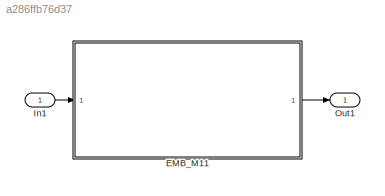
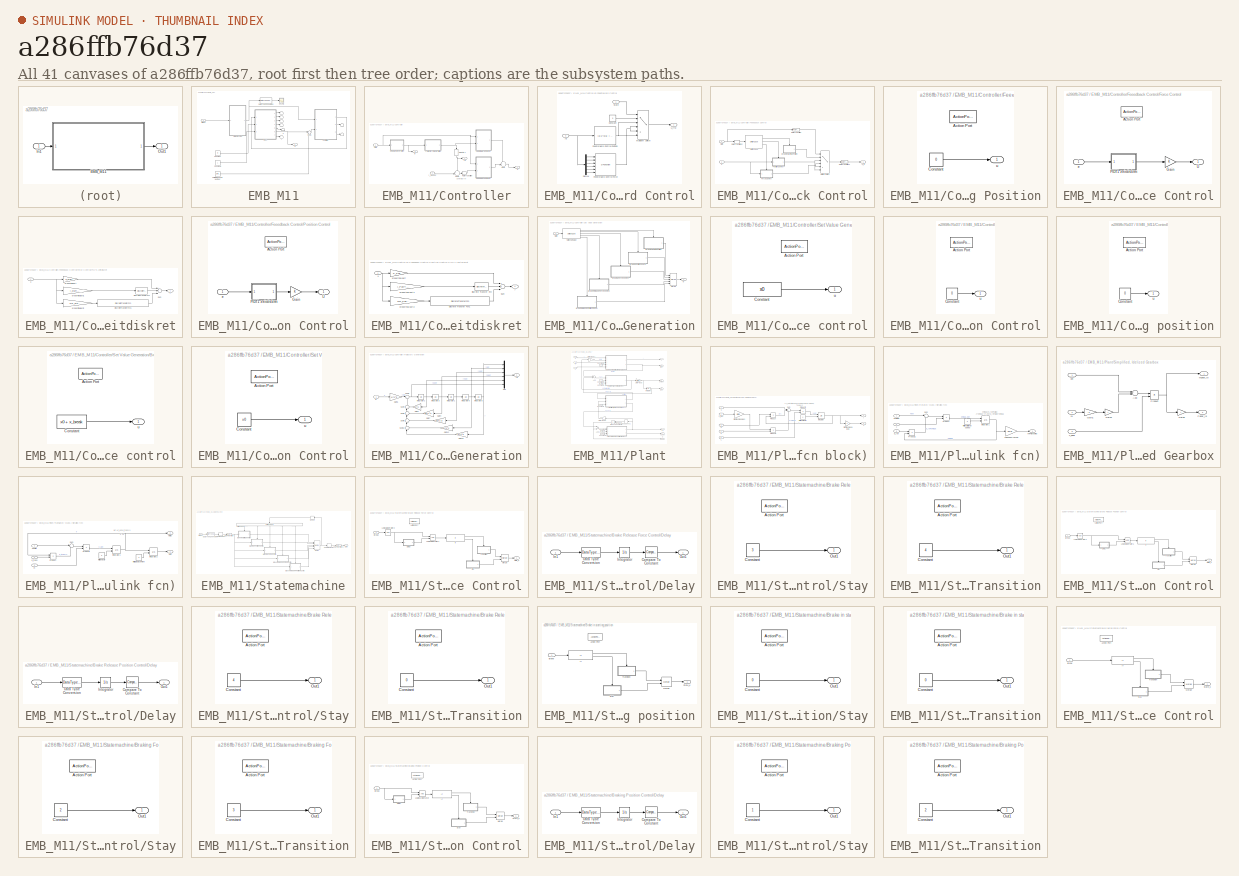
[diagram: thumbnail index - all 41 canvases of the model, root first then tree order]
MODEL slx_a286ffb76d37
KIND model
CONFIG AbsTol = auto
CONFIG EnableMultiTasking = off
CONFIG FixedStep = auto
CONFIG MaxStep = auto
CONFIG MinStep = auto
CONFIG RelTol = 1e-3
CONFIG SampleTimeConstraint = Unconstrained
CONFIG Solver = VariableStepAuto
CONFIG SolverName = VariableStepAuto
CONFIG StartTime = 0.0
CONFIG StopTime = 10.0
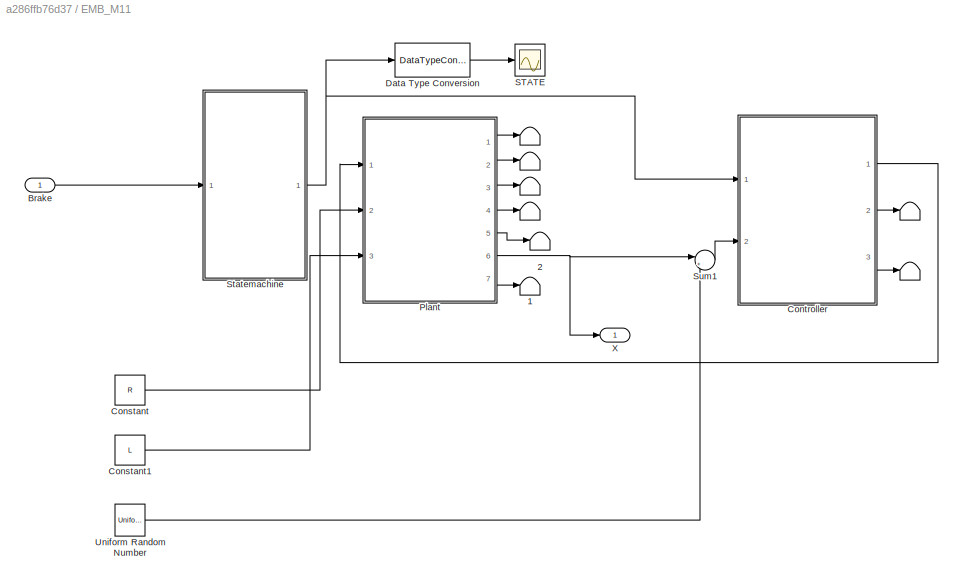
BLOCK [SubSystem] EMB_M11
  Ports = [1, 1]
  RequestExecContextInheritance = off
  Variant = off
BLOCK [Terminator] EMB_M11/  
BLOCK [Terminator] EMB_M11/   
BLOCK [Terminator] EMB_M11/    
BLOCK [Terminator] EMB_M11/      
BLOCK [Terminator] EMB_M11/        
BLOCK [Terminator] EMB_M11/          
BLOCK [Terminator] EMB_M11/   1
BLOCK [Terminator] EMB_M11/   2
BLOCK [Inport] EMB_M11/Brake
  IconDisplay = Port number
BLOCK [Constant] EMB_M11/Constant
  Value = R
BLOCK [Constant] EMB_M11/Constant1
  Value = L
BLOCK [SubSystem] EMB_M11/Controller
  Ports = [2, 3]
  RequestExecContextInheritance = off
  Variant = off
BLOCK [SubSystem] EMB_M11/Controller/Feedfoward Control
  Ports = [2, 1]
  RequestExecContextInheritance = off
  Variant = off
BLOCK [Constant] EMB_M11/Controller/Feedfoward Control/Constant
  Value = 0
BLOCK [Demux] EMB_M11/Controller/Feedfoward Control/Demux
  DisplayOption = bar
  Outputs = 6
  Ports = [1, 6]
BLOCK [S-Function] EMB_M11/Controller/Feedfoward Control/Feedforward Control Force
  EnableBusSupport = off
  FunctionName = InverseEMBforce
  Parameters = R,L,K,J,dvrot,m,dvtrans,cgear,i,cbreak,x0,xic
  Ports = [6, 1]
  SFcnIsStateOwnerBlock = off
  SFunctionDeploymentMode = off
BLOCK [Fcn] EMB_M11/Controller/Feedfoward Control/Feedforward Control Position
  Expr = (a(1)*u[6] + a(2)*u[5] + a(3)*u[4] + a(4)*u[3]  + a(5)*u[2] + a(6)*u[1] )/b
BLOCK [MultiPortSwitch] EMB_M11/Controller/Feedfoward Control/Multiport Switch
  DataPortOrder = Zero-based contiguous
  InputSameDT = off
  Inputs = 5
  Ports = [6, 1]
  SaturateOnIntegerOverflow = off
  zeroidx = on
BLOCK [Inport] EMB_M11/Controller/Feedfoward Control/State
  IconDisplay = Port number
BLOCK [Outport] EMB_M11/Controller/Feedfoward Control/U_ffw
  IconDisplay = Port number
BLOCK [Inport] EMB_M11/Controller/Feedfoward Control/yd
  IconDisplay = Port number
  Port = 2
BLOCK [SubSystem] EMB_M11/Controller/Feeedback Control
  Ports = [2, 1]
  RequestExecContextInheritance = off
  Variant = off
BLOCK [SubSystem] EMB_M11/Controller/Feeedback Control/Brakin in starting Position
  Ports = [0, 1, 0, 0, 0, 0, 0, 1]
  RequestExecContextInheritance = off
  TreatAsAtomicUnit = on
  Variant = off
BLOCK [ActionPort] EMB_M11/Controller/Feeedback Control/Brakin in starting Position/Action Port
BLOCK [Constant] EMB_M11/Controller/Feeedback Control/Brakin in starting Position/Constant
  Value = 0
BLOCK [Outport] EMB_M11/Controller/Feeedback Control/Brakin in starting Position/u
  IconDisplay = Port number
  SourceOfInitialOutputValue = Input signal
BLOCK [SubSystem] EMB_M11/Controller/Feeedback Control/Force Control
  Ports = [1, 1, 0, 0, 0, 0, 0, 1]
  RequestExecContextInheritance = off
  TreatAsAtomicUnit = on
  Variant = off
BLOCK [ActionPort] EMB_M11/Controller/Feeedback Control/Force Control/Action Port
  InitializeStates = reset
BLOCK [Gain] EMB_M11/Controller/Feeedback Control/Force Control/Gain
  OutDataTypeStr = Inherit: Inherit via internal rule
  ParamDataTypeStr = Inherit: Inherit via internal rule
  SaturateOnIntegerOverflow = off
BLOCK [SubSystem] EMB_M11/Controller/Feeedback Control/Force Control/PIDT1 zeitdiskret
  Ports = [1, 1]
  RequestExecContextInheritance = off
  Variant = off
BLOCK [DiscreteTransferFcn] EMB_M11/Controller/Feeedback Control/Force Control/PIDT1 zeitdiskret/Discrete Transfer Fcn
  Denominator = [1 -1]
  InputPortMap = u0
  Numerator = [1 1]
  Ports = [1, 1]
  SampleTime = T_abtast
BLOCK [DiscreteTransferFcn] EMB_M11/Controller/Feeedback Control/Force Control/PIDT1 zeitdiskret/Discrete Transfer Fcn1
  Denominator = [1+1/tan(T_abtast/2/1e-3) 1-1/tan(T_abtast/2/1e-3)]
  InputPortMap = u0
  Numerator = [1 -1]
  Ports = [1, 1]
  SampleTime = T_abtast
BLOCK [Sum] EMB_M11/Controller/Feeedback Control/Force Control/PIDT1 zeitdiskret/Sum
  InputSameDT = off
  Inputs = 3
  OutDataTypeStr = Inherit: Inherit via internal rule
  Ports = [3, 1]
  SaturateOnIntegerOverflow = off
BLOCK [Gain] EMB_M11/Controller/Feeedback Control/Force Control/PIDT1 zeitdiskret/proportinal part
  Gain = P_Kraft
  OutDataTypeStr = Inherit: Inherit via internal rule
  ParamDataTypeStr = Inherit: Inherit via internal rule
  SaturateOnIntegerOverflow = off
BLOCK [Gain] EMB_M11/Controller/Feeedback Control/Force Control/PIDT1 zeitdiskret/proportinal part1
  Gain = I_Kraft*T_abtast/2
  OutDataTypeStr = Inherit: Inherit via internal rule
  ParamDataTypeStr = Inherit: Inherit via internal rule
  SaturateOnIntegerOverflow = off
BLOCK [Gain] EMB_M11/Controller/Feeedback Control/Force Control/PIDT1 zeitdiskret/proportinal part2
  Gain = 2*D_Kraft/T_abtast
  OutDataTypeStr = Inherit: Inherit via internal rule
  ParamDataTypeStr = Inherit: Inherit via internal rule
  SaturateOnIntegerOverflow = off
BLOCK [Inport] EMB_M11/Controller/Feeedback Control/Force Control/PIDT1 zeitdiskret/u
  IconDisplay = Port number
BLOCK [Outport] EMB_M11/Controller/Feeedback Control/Force Control/PIDT1 zeitdiskret/y
  IconDisplay = Port number
BLOCK [Outport] EMB_M11/Controller/Feeedback Control/Force Control/U
  IconDisplay = Port number
  InitialOutput = 0
BLOCK [Inport] EMB_M11/Controller/Feeedback Control/Force Control/e
  IconDisplay = Port number
BLOCK [MultiPortSwitch] EMB_M11/Controller/Feeedback Control/Multiport Switch
  DataPortOrder = Zero-based contiguous
  InputSameDT = off
  Inputs = 5
  Ports = [6, 1]
  SaturateOnIntegerOverflow = off
  zeroidx = on
BLOCK [SubSystem] EMB_M11/Controller/Feeedback Control/Position Control
  Ports = [1, 1, 0, 0, 0, 0, 0, 1]
  RequestExecContextInheritance = off
  TreatAsAtomicUnit = on
  Variant = off
BLOCK [ActionPort] EMB_M11/Controller/Feeedback Control/Position Control/Action Port
  InitializeStates = reset
BLOCK [Gain] EMB_M11/Controller/Feeedback Control/Position Control/Gain
  OutDataTypeStr = Inherit: Inherit via internal rule
  ParamDataTypeStr = Inherit: Inherit via internal rule
  SaturateOnIntegerOverflow = off
BLOCK [SubSystem] EMB_M11/Controller/Feeedback Control/Position Control/PIDT1 zeitdiskret
  Ports = [1, 1]
  RequestExecContextInheritance = off
  Variant = off
BLOCK [DiscreteTransferFcn] EMB_M11/Controller/Feeedback Control/Position Control/PIDT1 zeitdiskret/Discrete Transfer Fcn
  Denominator = [1 -1]
  InputPortMap = u0
  Numerator = [1 1]
  Ports = [1, 1]
  SampleTime = T_abtast
BLOCK [DiscreteTransferFcn] EMB_M11/Controller/Feeedback Control/Position Control/PIDT1 zeitdiskret/Discrete Transfer Fcn1
  Denominator = [1+1/tan(T_abtast/2/1e-3) 1-1/tan(T_abtast/2/1e-3)]
  InputPortMap = u0
  Numerator = [1 -1]
  Ports = [1, 1]
  SampleTime = T_abtast
BLOCK [Sum] EMB_M11/Controller/Feeedback Control/Position Control/PIDT1 zeitdiskret/Sum
  InputSameDT = off
  Inputs = 3
  OutDataTypeStr = Inherit: Inherit via internal rule
  Ports = [3, 1]
  SaturateOnIntegerOverflow = off
BLOCK [Gain] EMB_M11/Controller/Feeedback Control/Position Control/PIDT1 zeitdiskret/proportinal part
  Gain = P_Pos
  OutDataTypeStr = Inherit: Inherit via internal rule
  ParamDataTypeStr = Inherit: Inherit via internal rule
  SaturateOnIntegerOverflow = off
BLOCK [Gain] EMB_M11/Controller/Feeedback Control/Position Control/PIDT1 zeitdiskret/proportinal part1
  Gain = I_Pos*T_abtast/2
  OutDataTypeStr = Inherit: Inherit via internal rule
  ParamDataTypeStr = Inherit: Inherit via internal rule
  SaturateOnIntegerOverflow = off
BLOCK [Gain] EMB_M11/Controller/Feeedback Control/Position Control/PIDT1 zeitdiskret/proportinal part2
  Gain = 2*D_Pos/T_abtast
  OutDataTypeStr = Inherit: Inherit via internal rule
  ParamDataTypeStr = Inherit: Inherit via internal rule
  SaturateOnIntegerOverflow = off
BLOCK [Inport] EMB_M11/Controller/Feeedback Control/Position Control/PIDT1 zeitdiskret/u
  IconDisplay = Port number
BLOCK [Outport] EMB_M11/Controller/Feeedback Control/Position Control/PIDT1 zeitdiskret/y
  IconDisplay = Port number
BLOCK [Outport] EMB_M11/Controller/Feeedback Control/Position Control/U
  IconDisplay = Port number
  InitialOutput = 0
BLOCK [Inport] EMB_M11/Controller/Feeedback Control/Position Control/e
  IconDisplay = Port number
BLOCK [RateTransition] EMB_M11/Controller/Feeedback Control/Rate Transition
BLOCK [RateTransition] EMB_M11/Controller/Feeedback Control/Rate Transition1
BLOCK [RateTransition] EMB_M11/Controller/Feeedback Control/Rate Transition2
BLOCK [Inport] EMB_M11/Controller/Feeedback Control/State
  IconDisplay = Port number
BLOCK [SwitchCase] EMB_M11/Controller/Feeedback Control/Switch Case
  CaseConditions = {0,[1,4],[2,3]}
  Ports = [1, 3]
  SampleTime = T_abtast
  ShowDefaultCase = off
BLOCK [Outport] EMB_M11/Controller/Feeedback Control/U_fb
  IconDisplay = Port number
BLOCK [Inport] EMB_M11/Controller/Feeedback Control/e
  IconDisplay = Port number
  Port = 2
BLOCK [RateTransition] EMB_M11/Controller/Rate Transition
BLOCK [Selector] EMB_M11/Controller/Selector1
  IndexOptions = Index vector (dialog)
  Indices = [1]
  InputPortWidth = 6
  OutputSizes = 1
  Ports = [1, 1]
BLOCK [SubSystem] EMB_M11/Controller/Set Value Generation
  Ports = [1, 1]
  RequestExecContextInheritance = off
  Variant = off
BLOCK [SubSystem] EMB_M11/Controller/Set Value Generation/Brake Release Force control
  Ports = [0, 1, 0, 0, 0, 0, 0, 1]
  RequestExecContextInheritance = off
  TreatAsAtomicUnit = on
  Variant = off
BLOCK [ActionPort] EMB_M11/Controller/Set Value Generation/Brake Release Force control/Action Port
BLOCK [Constant] EMB_M11/Controller/Set Value Generation/Brake Release Force control/Constant
  Value = x0
BLOCK [Outport] EMB_M11/Controller/Set Value Generation/Brake Release Force control/u
  IconDisplay = Port number
BLOCK [SubSystem] EMB_M11/Controller/Set Value Generation/Brake Release Position Control
  Ports = [0, 1, 0, 0, 0, 0, 0, 1]
  RequestExecContextInheritance = off
  TreatAsAtomicUnit = on
  Variant = off
BLOCK [ActionPort] EMB_M11/Controller/Set Value Generation/Brake Release Position Control/Action Port
BLOCK [Constant] EMB_M11/Controller/Set Value Generation/Brake Release Position Control/Constant
  Value = 0
BLOCK [Outport] EMB_M11/Controller/Set Value Generation/Brake Release Position Control/u
  IconDisplay = Port number
BLOCK [SubSystem] EMB_M11/Controller/Set Value Generation/Brake in starting position
  Ports = [0, 1, 0, 0, 0, 0, 0, 1]
  RequestExecContextInheritance = off
  TreatAsAtomicUnit = on
  Variant = off
BLOCK [ActionPort] EMB_M11/Controller/Set Value Generation/Brake in starting position/Action Port
BLOCK [Constant] EMB_M11/Controller/Set Value Generation/Brake in starting position/Constant
  Value = 0
BLOCK [Outport] EMB_M11/Controller/Set Value Generation/Brake in starting position/u
  IconDisplay = Port number
BLOCK [SubSystem] EMB_M11/Controller/Set Value Generation/Braking Force control
  Ports = [0, 1, 0, 0, 0, 0, 0, 1]
  RequestExecContextInheritance = off
  TreatAsAtomicUnit = on
  Variant = off
BLOCK [ActionPort] EMB_M11/Controller/Set Value Generation/Braking Force control/Action Port
BLOCK [Constant] EMB_M11/Controller/Set Value Generation/Braking Force control/Constant
  Value = x0 + x_break
BLOCK [Outport] EMB_M11/Controller/Set Value Generation/Braking Force control/u
  IconDisplay = Port number
BLOCK [SubSystem] EMB_M11/Controller/Set Value Generation/Braking Position Control
  Ports = [0, 1, 0, 0, 0, 0, 0, 1]
  RequestExecContextInheritance = off
  TreatAsAtomicUnit = on
  Variant = off
BLOCK [ActionPort] EMB_M11/Controller/Set Value Generation/Braking Position Control/Action Port
BLOCK [Constant] EMB_M11/Controller/Set Value Generation/Braking Position Control/Constant
  Value = x0
BLOCK [Outport] EMB_M11/Controller/Set Value Generation/Braking Position Control/u
  IconDisplay = Port number
BLOCK [Merge] EMB_M11/Controller/Set Value Generation/Merge
  InitialOutput = 0
  Inputs = 5
  Ports = [5, 1]
BLOCK [Inport] EMB_M11/Controller/Set Value Generation/State
  IconDisplay = Port number
BLOCK [SwitchCase] EMB_M11/Controller/Set Value Generation/Switch Set Value
  CaseConditions = {0,1,2,3,4}
  Ports = [1, 5]
  ShowDefaultCase = off
BLOCK [Outport] EMB_M11/Controller/Set Value Generation/w
  IconDisplay = Port number
BLOCK [Inport] EMB_M11/Controller/State
  IconDisplay = Port number
BLOCK [Sum] EMB_M11/Controller/Sum
  IconShape = round
  InputSameDT = off
  Inputs = ++|
  OutDataTypeStr = Inherit: Inherit via internal rule
  Ports = [2, 1]
  SaturateOnIntegerOverflow = off
BLOCK [Sum] EMB_M11/Controller/Sum1
  IconShape = round
  InputSameDT = off
  Inputs = +-|
  OutDataTypeStr = Inherit: Inherit via internal rule
  Ports = [2, 1]
  SaturateOnIntegerOverflow = off
BLOCK [SubSystem] EMB_M11/Controller/Trajectory Generation
  Ports = [1, 1]
  RequestExecContextInheritance = off
  Variant = off
BLOCK [Gain] EMB_M11/Controller/Trajectory Generation/Gain1
  Gain = 5/t1
  OutDataTypeStr = Inherit: Inherit via internal rule
  ParamDataTypeStr = Inherit: Inherit via internal rule
  SaturateOnIntegerOverflow = off
BLOCK [Gain] EMB_M11/Controller/Trajectory Generation/Gain12
  Gain = 5/t1^4
  OutDataTypeStr = Inherit: Inherit via internal rule
  ParamDataTypeStr = Inherit: Inherit via internal rule
  SaturateOnIntegerOverflow = off
BLOCK [Gain] EMB_M11/Controller/Trajectory Generation/Gain16
  Gain = 1/t1^5
  OutDataTypeStr = Inherit: Inherit via internal rule
  ParamDataTypeStr = Inherit: Inherit via internal rule
  SaturateOnIntegerOverflow = off
BLOCK [Gain] EMB_M11/Controller/Trajectory Generation/Gain4
  Gain = 10/t1^3
  OutDataTypeStr = Inherit: Inherit via internal rule
  ParamDataTypeStr = Inherit: Inherit via internal rule
  SaturateOnIntegerOverflow = off
BLOCK [Gain] EMB_M11/Controller/Trajectory Generation/Gain6
  Gain = 1/t1^5
  OutDataTypeStr = Inherit: Inherit via internal rule
  ParamDataTypeStr = Inherit: Inherit via internal rule
  SaturateOnIntegerOverflow = off
BLOCK [Gain] EMB_M11/Controller/Trajectory Generation/Gain7
  Gain = 10/t1^2
  OutDataTypeStr = Inherit: Inherit via internal rule
  ParamDataTypeStr = Inherit: Inherit via internal rule
  SaturateOnIntegerOverflow = off
BLOCK [Integrator] EMB_M11/Controller/Trajectory Generation/Integrator1
  Ports = [1, 1]
BLOCK [Integrator] EMB_M11/Controller/Trajectory Generation/Integrator2
  Ports = [1, 1]
BLOCK [Integrator] EMB_M11/Controller/Trajectory Generation/Integrator3
  Ports = [1, 1]
BLOCK [Integrator] EMB_M11/Controller/Trajectory Generation/Integrator5
  Ports = [1, 1]
BLOCK [Integrator] EMB_M11/Controller/Trajectory Generation/Integrator8
  Ports = [1, 1]
BLOCK [Mux] EMB_M11/Controller/Trajectory Generation/Mux
  DisplayOption = bar
  Inputs = 6
  Ports = [6, 1]
BLOCK [Sum] EMB_M11/Controller/Trajectory Generation/Sum1
  IconShape = round
  InputSameDT = off
  Inputs = |+-
  OutDataTypeStr = Inherit: Inherit via internal rule
  Ports = [2, 1]
  SaturateOnIntegerOverflow = off
BLOCK [Sum] EMB_M11/Controller/Trajectory Generation/Sum10
  IconShape = round
  InputSameDT = off
  Inputs = |++
  OutDataTypeStr = Inherit: Inherit via internal rule
  Ports = [2, 1]
  SaturateOnIntegerOverflow = off
BLOCK [Sum] EMB_M11/Controller/Trajectory Generation/Sum2
  IconShape = round
  InputSameDT = off
  Inputs = |++
  OutDataTypeStr = Inherit: Inherit via internal rule
  Ports = [2, 1]
  SaturateOnIntegerOverflow = off
BLOCK [Sum] EMB_M11/Controller/Trajectory Generation/Sum4
  IconShape = round
  InputSameDT = off
  Inputs = |++
  OutDataTypeStr = Inherit: Inherit via internal rule
  Ports = [2, 1]
  SaturateOnIntegerOverflow = off
BLOCK [Sum] EMB_M11/Controller/Trajectory Generation/Sum5
  IconShape = round
  InputSameDT = off
  Inputs = |++
  OutDataTypeStr = Inherit: Inherit via internal rule
  Ports = [2, 1]
  SaturateOnIntegerOverflow = off
BLOCK [Inport] EMB_M11/Controller/Trajectory Generation/w
  IconDisplay = Port number
BLOCK [Outport] EMB_M11/Controller/Trajectory Generation/yd
  IconDisplay = Port number
BLOCK [Outport] EMB_M11/Controller/U
  IconDisplay = Port number
BLOCK [Outport] EMB_M11/Controller/w
  IconDisplay = Port number
  Port = 2
BLOCK [Inport] EMB_M11/Controller/y_Sensor
  IconDisplay = Port number
  Port = 2
BLOCK [Outport] EMB_M11/Controller/yd
  IconDisplay = Port number
  Port = 3
BLOCK [DataTypeConversion] EMB_M11/Data Type Conversion
  RndMeth = Floor
  SaturateOnIntegerOverflow = off
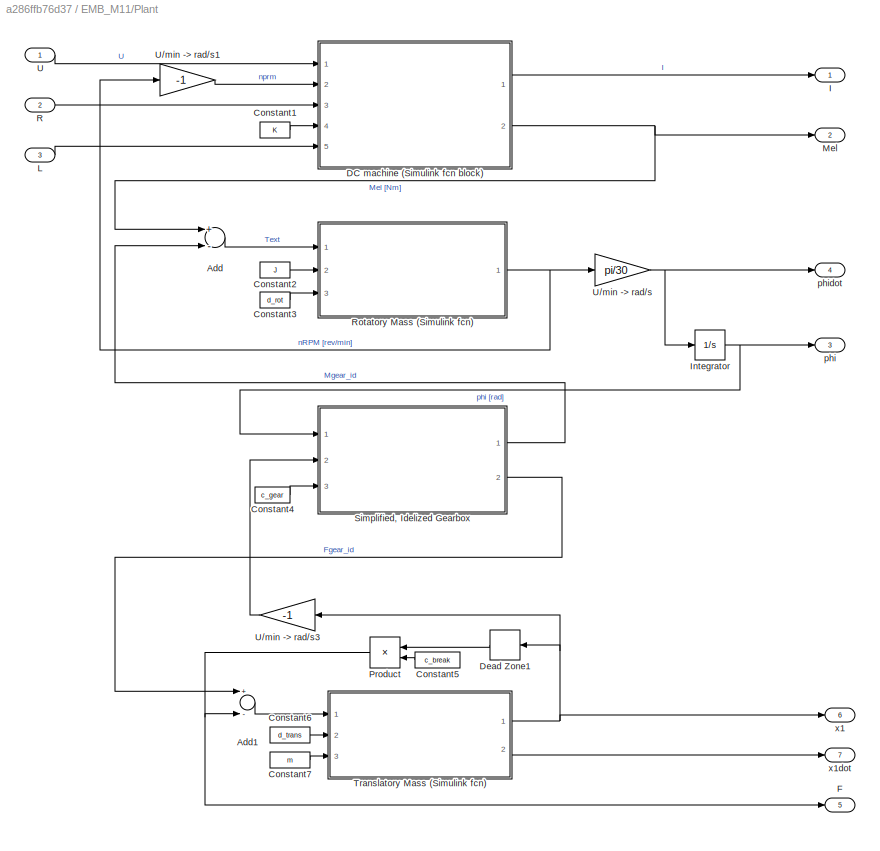
BLOCK [SubSystem] EMB_M11/Plant
  Ports = [3, 7]
  RequestExecContextInheritance = off
  Variant = off
BLOCK [Sum] EMB_M11/Plant/Add
  InputSameDT = off
  Inputs = +-
  OutDataTypeStr = Inherit: Inherit via internal rule
  Ports = [2, 1]
  SaturateOnIntegerOverflow = off
BLOCK [Sum] EMB_M11/Plant/Add1
  InputSameDT = off
  Inputs = +-
  OutDataTypeStr = Inherit: Inherit via internal rule
  Ports = [2, 1]
  SaturateOnIntegerOverflow = off
BLOCK [Constant] EMB_M11/Plant/Constant1
  Value = K
BLOCK [Constant] EMB_M11/Plant/Constant2
  Value = J
BLOCK [Constant] EMB_M11/Plant/Constant3
  Value = d_rot
BLOCK [Constant] EMB_M11/Plant/Constant4
  Value = c_gear
BLOCK [Constant] EMB_M11/Plant/Constant5
  Value = c_break
BLOCK [Constant] EMB_M11/Plant/Constant6
  Value = d_trans
BLOCK [Constant] EMB_M11/Plant/Constant7
  Value = m
BLOCK [SubSystem] EMB_M11/Plant/DC machine (Simulink fcn block)
  Ports = [5, 2]
  RequestExecContextInheritance = off
  Variant = off
BLOCK [Outport] EMB_M11/Plant/DC machine (Simulink fcn block)/I
  IconDisplay = Port number
BLOCK [Integrator] EMB_M11/Plant/DC machine (Simulink fcn block)/Integrator
  InitialConditionSource = external
  Ports = [2, 1]
BLOCK [Inport] EMB_M11/Plant/DC machine (Simulink fcn block)/K
  IconDisplay = Port number
  Port = 4
BLOCK [Inport] EMB_M11/Plant/DC machine (Simulink fcn block)/L
  IconDisplay = Port number
  Port = 5
BLOCK [Product] EMB_M11/Plant/DC machine (Simulink fcn block)/Product
  InputSameDT = off
  OutDataTypeStr = Inherit: Inherit via internal rule
  Ports = [2, 1]
  RndMeth = Floor
  SaturateOnIntegerOverflow = off
BLOCK [Product] EMB_M11/Plant/DC machine (Simulink fcn block)/Product1
  InputSameDT = off
  OutDataTypeStr = Inherit: Inherit via internal rule
  Ports = [2, 1]
  RndMeth = Floor
  SaturateOnIntegerOverflow = off
BLOCK [Product] EMB_M11/Plant/DC machine (Simulink fcn block)/Product2
  InputSameDT = off
  Inputs = */
  OutDataTypeStr = Inherit: Inherit via internal rule
  Ports = [2, 1]
  RndMeth = Floor
  SaturateOnIntegerOverflow = off
BLOCK [Inport] EMB_M11/Plant/DC machine (Simulink fcn block)/R
  IconDisplay = Port number
  Port = 3
BLOCK [Sum] EMB_M11/Plant/DC machine (Simulink fcn block)/Sum
  IconShape = round
  InputSameDT = off
  Inputs = |+--
  OutDataTypeStr = Inherit: Inherit via internal rule
  Ports = [3, 1]
  SaturateOnIntegerOverflow = off
BLOCK [Outport] EMB_M11/Plant/DC machine (Simulink fcn block)/T
  IconDisplay = Port number
  Port = 2
BLOCK [Inport] EMB_M11/Plant/DC machine (Simulink fcn block)/V
  IconDisplay = Port number
BLOCK [Constant] EMB_M11/Plant/DC machine (Simulink fcn block)/initial current [A]
  Value = 0
BLOCK [Gain] EMB_M11/Plant/DC machine (Simulink fcn block)/n [rpm] -> omega [1//s]
  Gain = pi/30
  OutDataTypeStr = Inherit: Inherit via internal rule
  ParamDataTypeStr = Inherit: Inherit via internal rule
  SaturateOnIntegerOverflow = off
BLOCK [Gain] EMB_M11/Plant/DC machine (Simulink fcn block)/n [rpm] -> omega [1//s]1
  Gain = K
  OutDataTypeStr = Inherit: Inherit via internal rule
  ParamDataTypeStr = Inherit: Inherit via internal rule
  SaturateOnIntegerOverflow = off
BLOCK [Inport] EMB_M11/Plant/DC machine (Simulink fcn block)/n_rpm
  IconDisplay = Port number
  Port = 2
BLOCK [DeadZone] EMB_M11/Plant/Dead Zone1
  LowerValue = -inf
  UpperValue = x0
BLOCK [Outport] EMB_M11/Plant/F
  IconDisplay = Port number
  Port = 5
BLOCK [Outport] EMB_M11/Plant/I
  IconDisplay = Port number
BLOCK [Integrator] EMB_M11/Plant/Integrator
  Ports = [1, 1]
BLOCK [Inport] EMB_M11/Plant/L
  IconDisplay = Port number
  Port = 3
BLOCK [Outport] EMB_M11/Plant/Mel
  IconDisplay = Port number
  Port = 2
BLOCK [Product] EMB_M11/Plant/Product
  InputSameDT = off
  OutDataTypeStr = Inherit: Inherit via internal rule
  Ports = [2, 1]
  RndMeth = Floor
  SaturateOnIntegerOverflow = off
BLOCK [Inport] EMB_M11/Plant/R
  IconDisplay = Port number
  Port = 2
BLOCK [SubSystem] EMB_M11/Plant/Rotatory Mass (Simulink fcn)
  Ports = [3, 1]
  RequestExecContextInheritance = off
  Variant = off
BLOCK [Integrator] EMB_M11/Plant/Rotatory Mass (Simulink fcn)/Integrator1
  InitialConditionSource = external
  Ports = [2, 1]
BLOCK [Inport] EMB_M11/Plant/Rotatory Mass (Simulink fcn)/J
  IconDisplay = Port number
  Port = 2
BLOCK [Product] EMB_M11/Plant/Rotatory Mass (Simulink fcn)/Product
  InputSameDT = off
  Inputs = */
  OutDataTypeStr = Inherit: Inherit via internal rule
  Ports = [2, 1]
  RndMeth = Floor
  SaturateOnIntegerOverflow = off
BLOCK [Product] EMB_M11/Plant/Rotatory Mass (Simulink fcn)/Product1
  InputSameDT = off
  OutDataTypeStr = Inherit: Inherit via internal rule
  Ports = [2, 1]
  RndMeth = Floor
  SaturateOnIntegerOverflow = off
BLOCK [Sum] EMB_M11/Plant/Rotatory Mass (Simulink fcn)/Sum
  IconShape = round
  InputSameDT = off
  Inputs = |+-
  OutDataTypeStr = Inherit: Inherit via internal rule
  Ports = [2, 1]
  SaturateOnIntegerOverflow = off
BLOCK [Inport] EMB_M11/Plant/Rotatory Mass (Simulink fcn)/Text [Nm]
  IconDisplay = Port number
BLOCK [Inport] EMB_M11/Plant/Rotatory Mass (Simulink fcn)/d_rot
  IconDisplay = Port number
  Port = 3
BLOCK [Constant] EMB_M11/Plant/Rotatory Mass (Simulink fcn)/initial rotational speed
  Value = 0
BLOCK [Outport] EMB_M11/Plant/Rotatory Mass (Simulink fcn)/nRPM[rev//min]
  IconDisplay = Port number
BLOCK [Gain] EMB_M11/Plant/Rotatory Mass (Simulink fcn)/omega [1//s] -> n [rpm]
  Gain = 30/pi
  OutDataTypeStr = Inherit: Inherit via internal rule
  ParamDataTypeStr = Inherit: Inherit via internal rule
  SaturateOnIntegerOverflow = off
BLOCK [SubSystem] EMB_M11/Plant/Simplified, Idelized Gearbox
  Ports = [3, 2]
  RequestExecContextInheritance = off
  Variant = off
BLOCK [Sum] EMB_M11/Plant/Simplified, Idelized Gearbox/Add
  InputSameDT = off
  Inputs = +-
  OutDataTypeStr = Inherit: Inherit via internal rule
  Ports = [2, 1]
  SaturateOnIntegerOverflow = off
BLOCK [Outport] EMB_M11/Plant/Simplified, Idelized Gearbox/Fgear_id
  IconDisplay = Port number
  Port = 2
BLOCK [Gain] EMB_M11/Plant/Simplified, Idelized Gearbox/Gain1
  Gain = -1
  OutDataTypeStr = Inherit: Inherit via internal rule
  ParamDataTypeStr = Inherit: Inherit via internal rule
  SaturateOnIntegerOverflow = off
BLOCK [Gain] EMB_M11/Plant/Simplified, Idelized Gearbox/Gain3
  Gain = i
  OutDataTypeStr = Inherit: Inherit via internal rule
  ParamDataTypeStr = Inherit: Inherit via internal rule
  SaturateOnIntegerOverflow = off
BLOCK [Gain] EMB_M11/Plant/Simplified, Idelized Gearbox/Gain5
  Gain = i
  OutDataTypeStr = Inherit: Inherit via internal rule
  ParamDataTypeStr = Inherit: Inherit via internal rule
  SaturateOnIntegerOverflow = off
BLOCK [Outport] EMB_M11/Plant/Simplified, Idelized Gearbox/Mgear_id
  IconDisplay = Port number
BLOCK [Product] EMB_M11/Plant/Simplified, Idelized Gearbox/Product
  InputSameDT = off
  OutDataTypeStr = Inherit: Inherit via internal rule
  Ports = [2, 1]
  RndMeth = Floor
  SaturateOnIntegerOverflow = off
BLOCK [Inport] EMB_M11/Plant/Simplified, Idelized Gearbox/c_gear
  IconDisplay = Port number
  Port = 3
BLOCK [Inport] EMB_M11/Plant/Simplified, Idelized Gearbox/phi
  IconDisplay = Port number
BLOCK [Inport] EMB_M11/Plant/Simplified, Idelized Gearbox/x1
  IconDisplay = Port number
  Port = 2
BLOCK [SubSystem] EMB_M11/Plant/Translatory Mass (Simulink fcn)
  Ports = [3, 2]
  RequestExecContextInheritance = off
  Variant = off
BLOCK [Inport] EMB_M11/Plant/Translatory Mass (Simulink fcn)/Fext [N]
  IconDisplay = Port number
BLOCK [Integrator] EMB_M11/Plant/Translatory Mass (Simulink fcn)/Integrator1
  InitialConditionSource = external
  Ports = [2, 1]
BLOCK [Integrator] EMB_M11/Plant/Translatory Mass (Simulink fcn)/Integrator2
  InitialConditionSource = external
  Ports = [2, 1]
BLOCK [Product] EMB_M11/Plant/Translatory Mass (Simulink fcn)/Product
  InputSameDT = off
  OutDataTypeStr = Inherit: Inherit via internal rule
  Ports = [2, 1]
  RndMeth = Floor
  SaturateOnIntegerOverflow = off
BLOCK [Product] EMB_M11/Plant/Translatory Mass (Simulink fcn)/Product1
  InputSameDT = off
  Inputs = */
  OutDataTypeStr = Inherit: Inherit via internal rule
  Ports = [2, 1]
  RndMeth = Floor
  SaturateOnIntegerOverflow = off
BLOCK [Sum] EMB_M11/Plant/Translatory Mass (Simulink fcn)/Sum
  IconShape = round
  InputSameDT = off
  Inputs = |+-
  OutDataTypeStr = Inherit: Inherit via internal rule
  Ports = [2, 1]
  SaturateOnIntegerOverflow = off
BLOCK [Inport] EMB_M11/Plant/Translatory Mass (Simulink fcn)/d_trans
  IconDisplay = Port number
  Port = 2
BLOCK [Constant] EMB_M11/Plant/Translatory Mass (Simulink fcn)/initial displacement
  Value = 0
BLOCK [Constant] EMB_M11/Plant/Translatory Mass (Simulink fcn)/initial velocity 
  Value = 0
BLOCK [Inport] EMB_M11/Plant/Translatory Mass (Simulink fcn)/m
  IconDisplay = Port number
  Port = 3
BLOCK [Outport] EMB_M11/Plant/Translatory Mass (Simulink fcn)/v[m//s]
  IconDisplay = Port number
  Port = 2
BLOCK [Outport] EMB_M11/Plant/Translatory Mass (Simulink fcn)/x [m]
  IconDisplay = Port number
BLOCK [Inport] EMB_M11/Plant/U
  IconDisplay = Port number
BLOCK [Gain] EMB_M11/Plant/U//min -> rad//s
  Gain = pi/30
  OutDataTypeStr = Inherit: Inherit via internal rule
  ParamDataTypeStr = Inherit: Inherit via internal rule
  SaturateOnIntegerOverflow = off
BLOCK [Gain] EMB_M11/Plant/U//min -> rad//s1
  Gain = -1
  OutDataTypeStr = Inherit: Inherit via internal rule
  ParamDataTypeStr = Inherit: Inherit via internal rule
  SaturateOnIntegerOverflow = off
BLOCK [Gain] EMB_M11/Plant/U//min -> rad//s3
  Gain = -1
  OutDataTypeStr = Inherit: Inherit via internal rule
  ParamDataTypeStr = Inherit: Inherit via internal rule
  SaturateOnIntegerOverflow = off
BLOCK [Outport] EMB_M11/Plant/phi
  IconDisplay = Port number
  Port = 3
BLOCK [Outport] EMB_M11/Plant/phidot
  IconDisplay = Port number
  Port = 4
BLOCK [Outport] EMB_M11/Plant/x1
  IconDisplay = Port number
  Port = 6
BLOCK [Outport] EMB_M11/Plant/x1dot
  IconDisplay = Port number
  Port = 7
BLOCK [Scope] EMB_M11/STATE
  NumInputPorts = 1
  Ports = [1]
  ScopeSpecificationString = C++SS(StrPVP('Location','[150, 165, 474, 404]'),StrPVP('Open','off'),MxPVP('AxesTitles',53,'struct(''axes1'',''%<SignalLabel>'')'),MxPVP('ScopeGraphics',56,'struct(''FigureColor'',''[0.5 0.5 0.5]'',''AxesColor'',''[0 0 0]'',''AxesTickColor'',''[1 1 1]'',''LineColors'',''[1 1 0;1 0 1;0 1 1;1 0 0;0 1 0;0 0 1]'',''LineStyles'',''-|-|-|-|-|-'',''LineWidths'',''[0.5 0.5 0.5 0.5 0.5 0.5]'',''MarkerStyle...<+272ch>
BLOCK [SubSystem] EMB_M11/Statemachine
  Ports = [1, 1]
  RequestExecContextInheritance = off
  Variant = off
BLOCK [Inport] EMB_M11/Statemachine/Brake
  IconDisplay = Port number
BLOCK [SubSystem] EMB_M11/Statemachine/Brake Release Force Control
  Ports = [1, 1, 0, 0, 0, 0, 0, 1]
  RequestExecContextInheritance = off
  TreatAsAtomicUnit = on
  Variant = off
BLOCK [ActionPort] EMB_M11/Statemachine/Brake Release Force Control/Action Port
  InitializeStates = reset
BLOCK [Inport] EMB_M11/Statemachine/Brake Release Force Control/Break
  IconDisplay = Port number
BLOCK [SubSystem] EMB_M11/Statemachine/Brake Release Force Control/Delay
  Ports = [1, 1]
  RequestExecContextInheritance = off
  Variant = off
BLOCK [Reference] EMB_M11/Statemachine/Brake Release Force Control/Delay/Compare To Constant  REF=simulink/Logic and Bit
Operations/Compare
To Constant
  Ports = [1, 1]
  SourceBlock = simulink/Logic and Bit\nOperations/Compare\nTo Constant
  SourceProductBaseCode = SL
  SourceProductName = Simulink
  SourceType = Compare To Constant
BLOCK [DataTypeConversion] EMB_M11/Statemachine/Brake Release Force Control/Delay/Data Type Conversion
  RndMeth = Floor
  SaturateOnIntegerOverflow = off
BLOCK [Inport] EMB_M11/Statemachine/Brake Release Force Control/Delay/In1
  IconDisplay = Port number
BLOCK [Integrator] EMB_M11/Statemachine/Brake Release Force Control/Delay/Integrator
  Ports = [1, 1]
BLOCK [Outport] EMB_M11/Statemachine/Brake Release Force Control/Delay/Out1
  IconDisplay = Port number
BLOCK [If] EMB_M11/Statemachine/Brake Release Force Control/If
  ElseIfExpressions = u1 == 0
  IfExpression = u1 == 1
  Ports = [1, 2]
  ShowElse = off
BLOCK [Logic] EMB_M11/Statemachine/Brake Release Force Control/Logical Operator1
  AllPortsSameDT = off
  OutDataTypeStr = boolean
  Ports = [2, 1]
BLOCK [Logic] EMB_M11/Statemachine/Brake Release Force Control/Logical Operator2
  AllPortsSameDT = off
  Operator = NOT
  OutDataTypeStr = boolean
  Ports = [1, 1]
BLOCK [Merge] EMB_M11/Statemachine/Brake Release Force Control/Merge
  Ports = [2, 1]
BLOCK [Outport] EMB_M11/Statemachine/Brake Release Force Control/State_k
  IconDisplay = Port number
BLOCK [SubSystem] EMB_M11/Statemachine/Brake Release Force Control/Stay
  Ports = [0, 1, 0, 0, 0, 0, 0, 1]
  RequestExecContextInheritance = off
  TreatAsAtomicUnit = on
  Variant = off
BLOCK [ActionPort] EMB_M11/Statemachine/Brake Release Force Control/Stay/Action Port
BLOCK [Constant] EMB_M11/Statemachine/Brake Release Force Control/Stay/Constant
  OutDataTypeStr = uint8
  Value = 3
BLOCK [Outport] EMB_M11/Statemachine/Brake Release Force Control/Stay/Out1
  IconDisplay = Port number
BLOCK [SubSystem] EMB_M11/Statemachine/Brake Release Force Control/Transition
  Ports = [0, 1, 0, 0, 0, 0, 0, 1]
  RequestExecContextInheritance = off
  TreatAsAtomicUnit = on
  Variant = off
BLOCK [ActionPort] EMB_M11/Statemachine/Brake Release Force Control/Transition/Action Port
BLOCK [Constant] EMB_M11/Statemachine/Brake Release Force Control/Transition/Constant
  OutDataTypeStr = uint8
  Value = 4
BLOCK [Outport] EMB_M11/Statemachine/Brake Release Force Control/Transition/Out1
  IconDisplay = Port number
BLOCK [SubSystem] EMB_M11/Statemachine/Brake Release Position Control
  Ports = [1, 1, 0, 0, 0, 0, 0, 1]
  RequestExecContextInheritance = off
  TreatAsAtomicUnit = on
  Variant = off
BLOCK [ActionPort] EMB_M11/Statemachine/Brake Release Position Control/Action Port
  InitializeStates = reset
BLOCK [Inport] EMB_M11/Statemachine/Brake Release Position Control/Break
  IconDisplay = Port number
BLOCK [SubSystem] EMB_M11/Statemachine/Brake Release Position Control/Delay
  Ports = [1, 1]
  RequestExecContextInheritance = off
  Variant = off
BLOCK [Reference] EMB_M11/Statemachine/Brake Release Position Control/Delay/Compare To Constant  REF=simulink/Logic and Bit
Operations/Compare
To Constant
  Ports = [1, 1]
  SourceBlock = simulink/Logic and Bit\nOperations/Compare\nTo Constant
  SourceProductBaseCode = SL
  SourceProductName = Simulink
  SourceType = Compare To Constant
BLOCK [DataTypeConversion] EMB_M11/Statemachine/Brake Release Position Control/Delay/Data Type Conversion
  RndMeth = Floor
  SaturateOnIntegerOverflow = off
BLOCK [Inport] EMB_M11/Statemachine/Brake Release Position Control/Delay/In1
  IconDisplay = Port number
BLOCK [Integrator] EMB_M11/Statemachine/Brake Release Position Control/Delay/Integrator
  Ports = [1, 1]
BLOCK [Outport] EMB_M11/Statemachine/Brake Release Position Control/Delay/Out1
  IconDisplay = Port number
BLOCK [If] EMB_M11/Statemachine/Brake Release Position Control/If
  ElseIfExpressions = u1 == 0
  IfExpression = u1 == 1
  Ports = [1, 2]
  ShowElse = off
BLOCK [Logic] EMB_M11/Statemachine/Brake Release Position Control/Logical Operator1
  AllPortsSameDT = off
  Operator = NOR
  OutDataTypeStr = boolean
  Ports = [2, 1]
BLOCK [Logic] EMB_M11/Statemachine/Brake Release Position Control/Logical Operator2
  AllPortsSameDT = off
  Operator = NOT
  OutDataTypeStr = boolean
  Ports = [1, 1]
BLOCK [Merge] EMB_M11/Statemachine/Brake Release Position Control/Merge
  Ports = [2, 1]
BLOCK [Outport] EMB_M11/Statemachine/Brake Release Position Control/State_k
  IconDisplay = Port number
BLOCK [SubSystem] EMB_M11/Statemachine/Brake Release Position Control/Stay
  Ports = [0, 1, 0, 0, 0, 0, 0, 1]
  RequestExecContextInheritance = off
  TreatAsAtomicUnit = on
  Variant = off
BLOCK [ActionPort] EMB_M11/Statemachine/Brake Release Position Control/Stay/Action Port
BLOCK [Constant] EMB_M11/Statemachine/Brake Release Position Control/Stay/Constant
  OutDataTypeStr = uint8
  Value = 4
BLOCK [Outport] EMB_M11/Statemachine/Brake Release Position Control/Stay/Out1
  IconDisplay = Port number
BLOCK [SubSystem] EMB_M11/Statemachine/Brake Release Position Control/Transition
  Ports = [0, 1, 0, 0, 0, 0, 0, 1]
  RequestExecContextInheritance = off
  TreatAsAtomicUnit = on
  Variant = off
BLOCK [ActionPort] EMB_M11/Statemachine/Brake Release Position Control/Transition/Action Port
BLOCK [Constant] EMB_M11/Statemachine/Brake Release Position Control/Transition/Constant
  OutDataTypeStr = uint8
  Value = 0
BLOCK [Outport] EMB_M11/Statemachine/Brake Release Position Control/Transition/Out1
  IconDisplay = Port number
BLOCK [SubSystem] EMB_M11/Statemachine/Brake in starting position
  Ports = [1, 1, 0, 0, 0, 0, 0, 1]
  RequestExecContextInheritance = off
  TreatAsAtomicUnit = on
  Variant = off
BLOCK [ActionPort] EMB_M11/Statemachine/Brake in starting position/Action Port
BLOCK [Inport] EMB_M11/Statemachine/Brake in starting position/Brake
  IconDisplay = Port number
BLOCK [If] EMB_M11/Statemachine/Brake in starting position/If
  ElseIfExpressions = u1 == 0
  IfExpression = u1 == 1
  Ports = [1, 2]
  ShowElse = off
BLOCK [Merge] EMB_M11/Statemachine/Brake in starting position/Merge
  Ports = [2, 1]
BLOCK [Outport] EMB_M11/Statemachine/Brake in starting position/State_k
  IconDisplay = Port number
BLOCK [SubSystem] EMB_M11/Statemachine/Brake in starting position/Stay
  Ports = [0, 1, 0, 0, 0, 0, 0, 1]
  RequestExecContextInheritance = off
  TreatAsAtomicUnit = on
  Variant = off
BLOCK [ActionPort] EMB_M11/Statemachine/Brake in starting position/Stay/Action Port
BLOCK [Constant] EMB_M11/Statemachine/Brake in starting position/Stay/Constant
  OutDataTypeStr = uint8
  Value = 0
BLOCK [Outport] EMB_M11/Statemachine/Brake in starting position/Stay/Out1
  IconDisplay = Port number
BLOCK [SubSystem] EMB_M11/Statemachine/Brake in starting position/Transition
  Ports = [0, 1, 0, 0, 0, 0, 0, 1]
  RequestExecContextInheritance = off
  TreatAsAtomicUnit = on
  Variant = off
BLOCK [ActionPort] EMB_M11/Statemachine/Brake in starting position/Transition/Action Port
BLOCK [Constant] EMB_M11/Statemachine/Brake in starting position/Transition/Constant
  OutDataTypeStr = uint8
  Value = 0
BLOCK [Outport] EMB_M11/Statemachine/Brake in starting position/Transition/Out1
  IconDisplay = Port number
BLOCK [SubSystem] EMB_M11/Statemachine/Braking Force Control
  Ports = [1, 1, 0, 0, 0, 0, 0, 1]
  RequestExecContextInheritance = off
  TreatAsAtomicUnit = on
  Variant = off
BLOCK [ActionPort] EMB_M11/Statemachine/Braking Force Control/Action Port
BLOCK [Inport] EMB_M11/Statemachine/Braking Force Control/Break
  IconDisplay = Port number
BLOCK [If] EMB_M11/Statemachine/Braking Force Control/If
  ElseIfExpressions = u1 == 1
  IfExpression = u1 == 0
  Ports = [1, 2]
  ShowElse = off
BLOCK [Merge] EMB_M11/Statemachine/Braking Force Control/Merge
  Ports = [2, 1]
BLOCK [Outport] EMB_M11/Statemachine/Braking Force Control/State_k
  IconDisplay = Port number
BLOCK [SubSystem] EMB_M11/Statemachine/Braking Force Control/Stay
  Ports = [0, 1, 0, 0, 0, 0, 0, 1]
  RequestExecContextInheritance = off
  TreatAsAtomicUnit = on
  Variant = off
BLOCK [ActionPort] EMB_M11/Statemachine/Braking Force Control/Stay/Action Port
BLOCK [Constant] EMB_M11/Statemachine/Braking Force Control/Stay/Constant
  OutDataTypeStr = uint8
  Value = 2
BLOCK [Outport] EMB_M11/Statemachine/Braking Force Control/Stay/Out1
  IconDisplay = Port number
BLOCK [SubSystem] EMB_M11/Statemachine/Braking Force Control/Transition
  Ports = [0, 1, 0, 0, 0, 0, 0, 1]
  RequestExecContextInheritance = off
  TreatAsAtomicUnit = on
  Variant = off
BLOCK [ActionPort] EMB_M11/Statemachine/Braking Force Control/Transition/Action Port
BLOCK [Constant] EMB_M11/Statemachine/Braking Force Control/Transition/Constant
  OutDataTypeStr = uint8
  Value = 3
BLOCK [Outport] EMB_M11/Statemachine/Braking Force Control/Transition/Out1
  IconDisplay = Port number
BLOCK [SubSystem] EMB_M11/Statemachine/Braking Position Control
  Ports = [1, 1, 0, 0, 0, 0, 0, 1]
  RequestExecContextInheritance = off
  TreatAsAtomicUnit = on
  Variant = off
BLOCK [ActionPort] EMB_M11/Statemachine/Braking Position Control/Action Port
  InitializeStates = reset
BLOCK [Inport] EMB_M11/Statemachine/Braking Position Control/Break
  IconDisplay = Port number
BLOCK [SubSystem] EMB_M11/Statemachine/Braking Position Control/Delay
  Ports = [1, 1]
  RequestExecContextInheritance = off
  Variant = off
BLOCK [Reference] EMB_M11/Statemachine/Braking Position Control/Delay/Compare To Constant  REF=simulink/Logic and Bit
Operations/Compare
To Constant
  Ports = [1, 1]
  SourceBlock = simulink/Logic and Bit\nOperations/Compare\nTo Constant
  SourceProductBaseCode = SL
  SourceProductName = Simulink
  SourceType = Compare To Constant
BLOCK [DataTypeConversion] EMB_M11/Statemachine/Braking Position Control/Delay/Data Type Conversion
  RndMeth = Floor
  SaturateOnIntegerOverflow = off
BLOCK [Inport] EMB_M11/Statemachine/Braking Position Control/Delay/In1
  IconDisplay = Port number
BLOCK [Integrator] EMB_M11/Statemachine/Braking Position Control/Delay/Integrator
  Ports = [1, 1]
BLOCK [Outport] EMB_M11/Statemachine/Braking Position Control/Delay/Out1
  IconDisplay = Port number
BLOCK [If] EMB_M11/Statemachine/Braking Position Control/If
  ElseIfExpressions = u1 == 0
  IfExpression = u1 == 1
  Ports = [1, 2]
  ShowElse = off
BLOCK [Logic] EMB_M11/Statemachine/Braking Position Control/Logical Operator
  AllPortsSameDT = off
  OutDataTypeStr = boolean
  Ports = [2, 1]
BLOCK [Merge] EMB_M11/Statemachine/Braking Position Control/Merge
  Ports = [2, 1]
BLOCK [Outport] EMB_M11/Statemachine/Braking Position Control/State_k
  IconDisplay = Port number
BLOCK [SubSystem] EMB_M11/Statemachine/Braking Position Control/Stay
  Ports = [0, 1, 0, 0, 0, 0, 0, 1]
  RequestExecContextInheritance = off
  TreatAsAtomicUnit = on
  Variant = off
BLOCK [ActionPort] EMB_M11/Statemachine/Braking Position Control/Stay/Action Port
BLOCK [Constant] EMB_M11/Statemachine/Braking Position Control/Stay/Constant
  OutDataTypeStr = uint8
BLOCK [Outport] EMB_M11/Statemachine/Braking Position Control/Stay/Out1
  IconDisplay = Port number
BLOCK [SubSystem] EMB_M11/Statemachine/Braking Position Control/Transition
  Ports = [0, 1, 0, 0, 0, 0, 0, 1]
  RequestExecContextInheritance = off
  TreatAsAtomicUnit = on
  Variant = off
BLOCK [ActionPort] EMB_M11/Statemachine/Braking Position Control/Transition/Action Port
BLOCK [Constant] EMB_M11/Statemachine/Braking Position Control/Transition/Constant
  OutDataTypeStr = uint8
  Value = 2
BLOCK [Outport] EMB_M11/Statemachine/Braking Position Control/Transition/Out1
  IconDisplay = Port number
BLOCK [DataTypeConversion] EMB_M11/Statemachine/Data Type Conversion
  OutDataTypeStr = uint8
  RndMeth = Floor
  SaturateOnIntegerOverflow = off
BLOCK [Memory] EMB_M11/Statemachine/Memory
  InheritSampleTime = on
BLOCK [Merge] EMB_M11/Statemachine/Merge
  InitialOutput = 0
  Inputs = 5
  Ports = [5, 1]
BLOCK [RateTransition] EMB_M11/Statemachine/Rate Transition
BLOCK [RateTransition] EMB_M11/Statemachine/Rate Transition1
BLOCK [Outport] EMB_M11/Statemachine/State
  IconDisplay = Port number
BLOCK [SwitchCase] EMB_M11/Statemachine/Switch Case
  CaseConditions = {0,1,2,3,4}
  Ports = [1, 5]
  ShowDefaultCase = off
BLOCK [ZeroOrderHold] EMB_M11/Statemachine/Zero-Order Hold1
  SampleTime = T_abtast
BLOCK [ZeroOrderHold] EMB_M11/Statemachine/Zero-Order Hold2
  SampleTime = T_abtast
BLOCK [Sum] EMB_M11/Sum1
  IconShape = round
  InputSameDT = off
  Inputs = |++
  OutDataTypeStr = Inherit: Inherit via internal rule
  Ports = [2, 1]
  SaturateOnIntegerOverflow = off
BLOCK [UniformRandomNumber] EMB_M11/Uniform Random Number
  Maximum = 0.05
  Minimum = -0.05
  SampleTime = 0.000005
BLOCK [Outport] EMB_M11/X
  IconDisplay = Port number
BLOCK [Inport] In1
  IconDisplay = Port number
BLOCK [Outport] Out1
  IconDisplay = Port number
ANNOTATION EMB_M11/Controller: Control Error
ANNOTATION EMB_M11/Plant/DC machine (Simulink fcn block): L*I_dot = V - tanh(100*I)*Ubrush - R*I - K*omega; Tout = K*I;
ANNOTATION EMB_M11/Plant/Rotatory Mass (Simulink fcn): omega = n_rpm * pi/30 J * omega´ = T_ext - d_rot*pi/30 * omega
ANNOTATION EMB_M11/Plant/Translatory Mass (Simulink fcn): M v´ = F_ext – d_trans * v x´=v
LINE EMB_M11/Brake:1 -> EMB_M11/Statemachine:1
LINE EMB_M11/Constant1:1 -> EMB_M11/Plant:3
LINE EMB_M11/Constant:1 -> EMB_M11/Plant:2
LINE EMB_M11/Controller/Feedfoward Control/Constant:1 -> EMB_M11/Controller/Feedfoward Control/Multiport Switch:2
LINE EMB_M11/Controller/Feedfoward Control/Demux:1 -> EMB_M11/Controller/Feedfoward Control/Feedforward Control Force:1
LINE EMB_M11/Controller/Feedfoward Control/Demux:2 -> EMB_M11/Controller/Feedfoward Control/Feedforward Control Force:2
LINE EMB_M11/Controller/Feedfoward Control/Demux:3 -> EMB_M11/Controller/Feedfoward Control/Feedforward Control Force:3
LINE EMB_M11/Controller/Feedfoward Control/Demux:4 -> EMB_M11/Controller/Feedfoward Control/Feedforward Control Force:4
LINE EMB_M11/Controller/Feedfoward Control/Demux:5 -> EMB_M11/Controller/Feedfoward Control/Feedforward Control Force:5
LINE EMB_M11/Controller/Feedfoward Control/Demux:6 -> EMB_M11/Controller/Feedfoward Control/Feedforward Control Force:6
NET EMB_M11/Controller/Feedfoward Control/Feedforward Control Force:1 -> EMB_M11/Controller/Feedfoward Control/Multiport Switch:4, EMB_M11/Controller/Feedfoward Control/Multiport Switch:5
NET EMB_M11/Controller/Feedfoward Control/Feedforward Control Position:1 -> EMB_M11/Controller/Feedfoward Control/Multiport Switch:3, EMB_M11/Controller/Feedfoward Control/Multiport Switch:6
LINE EMB_M11/Controller/Feedfoward Control/Multiport Switch:1 -> EMB_M11/Controller/Feedfoward Control/U_ffw:1
LINE EMB_M11/Controller/Feedfoward Control/State:1 -> EMB_M11/Controller/Feedfoward Control/Multiport Switch:1
NET EMB_M11/Controller/Feedfoward Control/yd:1 -> EMB_M11/Controller/Feedfoward Control/Demux:1, EMB_M11/Controller/Feedfoward Control/Feedforward Control Position:1
LINE EMB_M11/Controller/Feedfoward Control:1 -> EMB_M11/Controller/Sum:1
LINE EMB_M11/Controller/Feeedback Control/Brakin in starting Position/Constant:1 -> EMB_M11/Controller/Feeedback Control/Brakin in starting Position/u:1
LINE EMB_M11/Controller/Feeedback Control/Brakin in starting Position:1 -> EMB_M11/Controller/Feeedback Control/Multiport Switch:2
LINE EMB_M11/Controller/Feeedback Control/Force Control/Gain:1 -> EMB_M11/Controller/Feeedback Control/Force Control/U:1
LINE EMB_M11/Controller/Feeedback Control/Force Control/PIDT1 zeitdiskret/Discrete Transfer Fcn1:1 -> EMB_M11/Controller/Feeedback Control/Force Control/PIDT1 zeitdiskret/Sum:3
LINE EMB_M11/Controller/Feeedback Control/Force Control/PIDT1 zeitdiskret/Discrete Transfer Fcn:1 -> EMB_M11/Controller/Feeedback Control/Force Control/PIDT1 zeitdiskret/Sum:2
LINE EMB_M11/Controller/Feeedback Control/Force Control/PIDT1 zeitdiskret/Sum:1 -> EMB_M11/Controller/Feeedback Control/Force Control/PIDT1 zeitdiskret/y:1
LINE EMB_M11/Controller/Feeedback Control/Force Control/PIDT1 zeitdiskret/proportinal part1:1 -> EMB_M11/Controller/Feeedback Control/Force Control/PIDT1 zeitdiskret/Discrete Transfer Fcn:1
LINE EMB_M11/Controller/Feeedback Control/Force Control/PIDT1 zeitdiskret/proportinal part2:1 -> EMB_M11/Controller/Feeedback Control/Force Control/PIDT1 zeitdiskret/Discrete Transfer Fcn1:1
LINE EMB_M11/Controller/Feeedback Control/Force Control/PIDT1 zeitdiskret/proportinal part:1 -> EMB_M11/Controller/Feeedback Control/Force Control/PIDT1 zeitdiskret/Sum:1
NET EMB_M11/Controller/Feeedback Control/Force Control/PIDT1 zeitdiskret/u:1 -> EMB_M11/Controller/Feeedback Control/Force Control/PIDT1 zeitdiskret/proportinal part1:1, EMB_M11/Controller/Feeedback Control/Force Control/PIDT1 zeitdiskret/proportinal part2:1, EMB_M11/Controller/Feeedback Control/Force Control/PIDT1 zeitdiskret/proportinal part:1
LINE EMB_M11/Controller/Feeedback Control/Force Control/PIDT1 zeitdiskret:1 -> EMB_M11/Controller/Feeedback Control/Force Control/Gain:1
LINE EMB_M11/Controller/Feeedback Control/Force Control/e:1 -> EMB_M11/Controller/Feeedback Control/Force Control/PIDT1 zeitdiskret:1
NET EMB_M11/Controller/Feeedback Control/Force Control:1 -> EMB_M11/Controller/Feeedback Control/Multiport Switch:4, EMB_M11/Controller/Feeedback Control/Multiport Switch:5
LINE EMB_M11/Controller/Feeedback Control/Multiport Switch:1 -> EMB_M11/Controller/Feeedback Control/Rate Transition1:1
LINE EMB_M11/Controller/Feeedback Control/Position Control/Gain:1 -> EMB_M11/Controller/Feeedback Control/Position Control/U:1
LINE EMB_M11/Controller/Feeedback Control/Position Control/PIDT1 zeitdiskret/Discrete Transfer Fcn1:1 -> EMB_M11/Controller/Feeedback Control/Position Control/PIDT1 zeitdiskret/Sum:3
LINE EMB_M11/Controller/Feeedback Control/Position Control/PIDT1 zeitdiskret/Discrete Transfer Fcn:1 -> EMB_M11/Controller/Feeedback Control/Position Control/PIDT1 zeitdiskret/Sum:2
LINE EMB_M11/Controller/Feeedback Control/Position Control/PIDT1 zeitdiskret/Sum:1 -> EMB_M11/Controller/Feeedback Control/Position Control/PIDT1 zeitdiskret/y:1
LINE EMB_M11/Controller/Feeedback Control/Position Control/PIDT1 zeitdiskret/proportinal part1:1 -> EMB_M11/Controller/Feeedback Control/Position Control/PIDT1 zeitdiskret/Discrete Transfer Fcn:1
LINE EMB_M11/Controller/Feeedback Control/Position Control/PIDT1 zeitdiskret/proportinal part2:1 -> EMB_M11/Controller/Feeedback Control/Position Control/PIDT1 zeitdiskret/Discrete Transfer Fcn1:1
LINE EMB_M11/Controller/Feeedback Control/Position Control/PIDT1 zeitdiskret/proportinal part:1 -> EMB_M11/Controller/Feeedback Control/Position Control/PIDT1 zeitdiskret/Sum:1
NET EMB_M11/Controller/Feeedback Control/Position Control/PIDT1 zeitdiskret/u:1 -> EMB_M11/Controller/Feeedback Control/Position Control/PIDT1 zeitdiskret/proportinal part1:1, EMB_M11/Controller/Feeedback Control/Position Control/PIDT1 zeitdiskret/proportinal part2:1, EMB_M11/Controller/Feeedback Control/Position Control/PIDT1 zeitdiskret/proportinal part:1
LINE EMB_M11/Controller/Feeedback Control/Position Control/PIDT1 zeitdiskret:1 -> EMB_M11/Controller/Feeedback Control/Position Control/Gain:1
LINE EMB_M11/Controller/Feeedback Control/Position Control/e:1 -> EMB_M11/Controller/Feeedback Control/Position Control/PIDT1 zeitdiskret:1
NET EMB_M11/Controller/Feeedback Control/Position Control:1 -> EMB_M11/Controller/Feeedback Control/Multiport Switch:3, EMB_M11/Controller/Feeedback Control/Multiport Switch:6
LINE EMB_M11/Controller/Feeedback Control/Rate Transition1:1 -> EMB_M11/Controller/Feeedback Control/U_fb:1
LINE EMB_M11/Controller/Feeedback Control/Rate Transition2:1 -> EMB_M11/Controller/Feeedback Control/Switch Case:1
LINE EMB_M11/Controller/Feeedback Control/Rate Transition:1 -> EMB_M11/Controller/Feeedback Control/Multiport Switch:1
NET EMB_M11/Controller/Feeedback Control/State:1 -> EMB_M11/Controller/Feeedback Control/Rate Transition2:1, EMB_M11/Controller/Feeedback Control/Rate Transition:1
LINE EMB_M11/Controller/Feeedback Control/Switch Case:1 -> EMB_M11/Controller/Feeedback Control/Brakin in starting Position:ifaction
LINE EMB_M11/Controller/Feeedback Control/Switch Case:2 -> EMB_M11/Controller/Feeedback Control/Position Control:ifaction
LINE EMB_M11/Controller/Feeedback Control/Switch Case:3 -> EMB_M11/Controller/Feeedback Control/Force Control:ifaction
NET EMB_M11/Controller/Feeedback Control/e:1 -> EMB_M11/Controller/Feeedback Control/Force Control:1, EMB_M11/Controller/Feeedback Control/Position Control:1
LINE EMB_M11/Controller/Feeedback Control:1 -> EMB_M11/Controller/Sum:2
LINE EMB_M11/Controller/Rate Transition:1 -> EMB_M11/Controller/Feeedback Control:2
NET EMB_M11/Controller/Selector1:1 -> EMB_M11/Controller/Sum1:1, EMB_M11/Controller/yd:1
LINE EMB_M11/Controller/Set Value Generation/Brake Release Force control/Constant:1 -> EMB_M11/Controller/Set Value Generation/Brake Release Force control/u:1
LINE EMB_M11/Controller/Set Value Generation/Brake Release Force control:1 -> EMB_M11/Controller/Set Value Generation/Merge:4
LINE EMB_M11/Controller/Set Value Generation/Brake Release Position Control/Constant:1 -> EMB_M11/Controller/Set Value Generation/Brake Release Position Control/u:1
LINE EMB_M11/Controller/Set Value Generation/Brake Release Position Control:1 -> EMB_M11/Controller/Set Value Generation/Merge:5
LINE EMB_M11/Controller/Set Value Generation/Brake in starting position/Constant:1 -> EMB_M11/Controller/Set Value Generation/Brake in starting position/u:1
LINE EMB_M11/Controller/Set Value Generation/Brake in starting position:1 -> EMB_M11/Controller/Set Value Generation/Merge:1
LINE EMB_M11/Controller/Set Value Generation/Braking Force control/Constant:1 -> EMB_M11/Controller/Set Value Generation/Braking Force control/u:1
LINE EMB_M11/Controller/Set Value Generation/Braking Force control:1 -> EMB_M11/Controller/Set Value Generation/Merge:3
LINE EMB_M11/Controller/Set Value Generation/Braking Position Control/Constant:1 -> EMB_M11/Controller/Set Value Generation/Braking Position Control/u:1
LINE EMB_M11/Controller/Set Value Generation/Braking Position Control:1 -> EMB_M11/Controller/Set Value Generation/Merge:2
LINE EMB_M11/Controller/Set Value Generation/Merge:1 -> EMB_M11/Controller/Set Value Generation/w:1
LINE EMB_M11/Controller/Set Value Generation/State:1 -> EMB_M11/Controller/Set Value Generation/Switch Set Value:1
LINE EMB_M11/Controller/Set Value Generation/Switch Set Value:1 -> EMB_M11/Controller/Set Value Generation/Brake in starting position:ifaction
LINE EMB_M11/Controller/Set Value Generation/Switch Set Value:2 -> EMB_M11/Controller/Set Value Generation/Braking Position Control:ifaction
LINE EMB_M11/Controller/Set Value Generation/Switch Set Value:3 -> EMB_M11/Controller/Set Value Generation/Braking Force control:ifaction
LINE EMB_M11/Controller/Set Value Generation/Switch Set Value:4 -> EMB_M11/Controller/Set Value Generation/Brake Release Force control:ifaction
LINE EMB_M11/Controller/Set Value Generation/Switch Set Value:5 -> EMB_M11/Controller/Set Value Generation/Brake Release Position Control:ifaction
NET EMB_M11/Controller/Set Value Generation:1 -> EMB_M11/Controller/Trajectory Generation:1, EMB_M11/Controller/w:1
NET EMB_M11/Controller/State:1 -> EMB_M11/Controller/Feedfoward Control:1, EMB_M11/Controller/Feeedback Control:1, EMB_M11/Controller/Set Value Generation:1
LINE EMB_M11/Controller/Sum1:1 -> EMB_M11/Controller/Rate Transition:1
LINE EMB_M11/Controller/Sum:1 -> EMB_M11/Controller/U:1
LINE EMB_M11/Controller/Trajectory Generation/Gain12:1 -> EMB_M11/Controller/Trajectory Generation/Sum10:2
LINE EMB_M11/Controller/Trajectory Generation/Gain16:1 -> EMB_M11/Controller/Trajectory Generation/Sum10:1
LINE EMB_M11/Controller/Trajectory Generation/Gain1:1 -> EMB_M11/Controller/Trajectory Generation/Sum4:2
LINE EMB_M11/Controller/Trajectory Generation/Gain4:1 -> EMB_M11/Controller/Trajectory Generation/Sum5:2
LINE EMB_M11/Controller/Trajectory Generation/Gain6:1 -> EMB_M11/Controller/Trajectory Generation/Sum1:1
LINE EMB_M11/Controller/Trajectory Generation/Gain7:1 -> EMB_M11/Controller/Trajectory Generation/Sum2:2
NET EMB_M11/Controller/Trajectory Generation/Integrator1:1 -> EMB_M11/Controller/Trajectory Generation/Gain4:1, EMB_M11/Controller/Trajectory Generation/Integrator5:1, EMB_M11/Controller/Trajectory Generation/Mux:3
NET EMB_M11/Controller/Trajectory Generation/Integrator2:1 -> EMB_M11/Controller/Trajectory Generation/Gain1:1, EMB_M11/Controller/Trajectory Generation/Integrator3:1, EMB_M11/Controller/Trajectory Generation/Mux:5
NET EMB_M11/Controller/Trajectory Generation/Integrator3:1 -> EMB_M11/Controller/Trajectory Generation/Gain7:1, EMB_M11/Controller/Trajectory Generation/Integrator1:1, EMB_M11/Controller/Trajectory Generation/Mux:4
NET EMB_M11/Controller/Trajectory Generation/Integrator5:1 -> EMB_M11/Controller/Trajectory Generation/Gain12:1, EMB_M11/Controller/Trajectory Generation/Integrator8:1, EMB_M11/Controller/Trajectory Generation/Mux:2
NET EMB_M11/Controller/Trajectory Generation/Integrator8:1 -> EMB_M11/Controller/Trajectory Generation/Gain16:1, EMB_M11/Controller/Trajectory Generation/Mux:1
LINE EMB_M11/Controller/Trajectory Generation/Mux:1 -> EMB_M11/Controller/Trajectory Generation/yd:1
LINE EMB_M11/Controller/Trajectory Generation/Sum10:1 -> EMB_M11/Controller/Trajectory Generation/Sum5:1
NET EMB_M11/Controller/Trajectory Generation/Sum1:1 -> EMB_M11/Controller/Trajectory Generation/Integrator2:1, EMB_M11/Controller/Trajectory Generation/Mux:6
LINE EMB_M11/Controller/Trajectory Generation/Sum2:1 -> EMB_M11/Controller/Trajectory Generation/Sum4:1
LINE EMB_M11/Controller/Trajectory Generation/Sum4:1 -> EMB_M11/Controller/Trajectory Generation/Sum1:2
LINE EMB_M11/Controller/Trajectory Generation/Sum5:1 -> EMB_M11/Controller/Trajectory Generation/Sum2:1
LINE EMB_M11/Controller/Trajectory Generation/w:1 -> EMB_M11/Controller/Trajectory Generation/Gain6:1
NET EMB_M11/Controller/Trajectory Generation:1 -> EMB_M11/Controller/Feedfoward Control:2, EMB_M11/Controller/Selector1:1
LINE EMB_M11/Controller/y_Sensor:1 -> EMB_M11/Controller/Sum1:2
LINE EMB_M11/Controller:1 -> EMB_M11/Plant:1
LINE EMB_M11/Controller:2 -> EMB_M11/          :1
LINE EMB_M11/Controller:3 -> EMB_M11/        :1
LINE EMB_M11/Data Type Conversion:1 -> EMB_M11/STATE:1
LINE EMB_M11/Plant/Add1:1 -> EMB_M11/Plant/Translatory Mass (Simulink fcn):1
LINE EMB_M11/Plant/Add:1 -> EMB_M11/Plant/Rotatory Mass (Simulink fcn):1
LINE EMB_M11/Plant/Constant1:1 -> EMB_M11/Plant/DC machine (Simulink fcn block):4
LINE EMB_M11/Plant/Constant2:1 -> EMB_M11/Plant/Rotatory Mass (Simulink fcn):2
LINE EMB_M11/Plant/Constant3:1 -> EMB_M11/Plant/Rotatory Mass (Simulink fcn):3
LINE EMB_M11/Plant/Constant4:1 -> EMB_M11/Plant/Simplified, Idelized Gearbox:3
LINE EMB_M11/Plant/Constant5:1 -> EMB_M11/Plant/Product:2
LINE EMB_M11/Plant/Constant6:1 -> EMB_M11/Plant/Translatory Mass (Simulink fcn):2
LINE EMB_M11/Plant/Constant7:1 -> EMB_M11/Plant/Translatory Mass (Simulink fcn):3
NET EMB_M11/Plant/DC machine (Simulink fcn block)/Integrator:1 -> EMB_M11/Plant/DC machine (Simulink fcn block)/I:1, EMB_M11/Plant/DC machine (Simulink fcn block)/Product:2, EMB_M11/Plant/DC machine (Simulink fcn block)/n [rpm] -> omega [1//s]1:1
LINE EMB_M11/Plant/DC machine (Simulink fcn block)/K:1 -> EMB_M11/Plant/DC machine (Simulink fcn block)/Product1:2
LINE EMB_M11/Plant/DC machine (Simulink fcn block)/L:1 -> EMB_M11/Plant/DC machine (Simulink fcn block)/Product2:2
LINE EMB_M11/Plant/DC machine (Simulink fcn block)/Product1:1 -> EMB_M11/Plant/DC machine (Simulink fcn block)/Sum:3
LINE EMB_M11/Plant/DC machine (Simulink fcn block)/Product2:1 -> EMB_M11/Plant/DC machine (Simulink fcn block)/Integrator:1
LINE EMB_M11/Plant/DC machine (Simulink fcn block)/Product:1 -> EMB_M11/Plant/DC machine (Simulink fcn block)/Sum:2
LINE EMB_M11/Plant/DC machine (Simulink fcn block)/R:1 -> EMB_M11/Plant/DC machine (Simulink fcn block)/Product:1
LINE EMB_M11/Plant/DC machine (Simulink fcn block)/Sum:1 -> EMB_M11/Plant/DC machine (Simulink fcn block)/Product2:1
LINE EMB_M11/Plant/DC machine (Simulink fcn block)/V:1 -> EMB_M11/Plant/DC machine (Simulink fcn block)/Sum:1
LINE EMB_M11/Plant/DC machine (Simulink fcn block)/initial current [A]:1 -> EMB_M11/Plant/DC machine (Simulink fcn block)/Integrator:2
LINE EMB_M11/Plant/DC machine (Simulink fcn block)/n [rpm] -> omega [1//s]1:1 -> EMB_M11/Plant/DC machine (Simulink fcn block)/T:1
LINE EMB_M11/Plant/DC machine (Simulink fcn block)/n [rpm] -> omega [1//s]:1 -> EMB_M11/Plant/DC machine (Simulink fcn block)/Product1:1
LINE EMB_M11/Plant/DC machine (Simulink fcn block)/n_rpm:1 -> EMB_M11/Plant/DC machine (Simulink fcn block)/n [rpm] -> omega [1//s]:1
LINE EMB_M11/Plant/DC machine (Simulink fcn block):1 -> EMB_M11/Plant/I:1
NET EMB_M11/Plant/DC machine (Simulink fcn block):2 -> EMB_M11/Plant/Add:1, EMB_M11/Plant/Mel:1
LINE EMB_M11/Plant/Dead Zone1:1 -> EMB_M11/Plant/Product:1
NET EMB_M11/Plant/Integrator:1 -> EMB_M11/Plant/Simplified, Idelized Gearbox:1, EMB_M11/Plant/phi:1
LINE EMB_M11/Plant/L:1 -> EMB_M11/Plant/DC machine (Simulink fcn block):5
NET EMB_M11/Plant/Product:1 -> EMB_M11/Plant/Add1:2, EMB_M11/Plant/F:1
LINE EMB_M11/Plant/R:1 -> EMB_M11/Plant/DC machine (Simulink fcn block):3
NET EMB_M11/Plant/Rotatory Mass (Simulink fcn)/Integrator1:1 -> EMB_M11/Plant/Rotatory Mass (Simulink fcn)/Product1:2, EMB_M11/Plant/Rotatory Mass (Simulink fcn)/omega [1//s] -> n [rpm]:1
LINE EMB_M11/Plant/Rotatory Mass (Simulink fcn)/J:1 -> EMB_M11/Plant/Rotatory Mass (Simulink fcn)/Product:2
LINE EMB_M11/Plant/Rotatory Mass (Simulink fcn)/Product1:1 -> EMB_M11/Plant/Rotatory Mass (Simulink fcn)/Sum:2
LINE EMB_M11/Plant/Rotatory Mass (Simulink fcn)/Product:1 -> EMB_M11/Plant/Rotatory Mass (Simulink fcn)/Integrator1:1
LINE EMB_M11/Plant/Rotatory Mass (Simulink fcn)/Sum:1 -> EMB_M11/Plant/Rotatory Mass (Simulink fcn)/Product:1
LINE EMB_M11/Plant/Rotatory Mass (Simulink fcn)/Text [Nm]:1 -> EMB_M11/Plant/Rotatory Mass (Simulink fcn)/Sum:1
LINE EMB_M11/Plant/Rotatory Mass (Simulink fcn)/d_rot:1 -> EMB_M11/Plant/Rotatory Mass (Simulink fcn)/Product1:1
LINE EMB_M11/Plant/Rotatory Mass (Simulink fcn)/initial rotational speed:1 -> EMB_M11/Plant/Rotatory Mass (Simulink fcn)/Integrator1:2
LINE EMB_M11/Plant/Rotatory Mass (Simulink fcn)/omega [1//s] -> n [rpm]:1 -> EMB_M11/Plant/Rotatory Mass (Simulink fcn)/nRPM[rev//min]:1
NET EMB_M11/Plant/Rotatory Mass (Simulink fcn):1 -> EMB_M11/Plant/U//min -> rad//s1:1, EMB_M11/Plant/U//min -> rad//s:1
LINE EMB_M11/Plant/Simplified, Idelized Gearbox/Add:1 -> EMB_M11/Plant/Simplified, Idelized Gearbox/Product:1
LINE EMB_M11/Plant/Simplified, Idelized Gearbox/Gain1:1 -> EMB_M11/Plant/Simplified, Idelized Gearbox/Gain3:1
LINE EMB_M11/Plant/Simplified, Idelized Gearbox/Gain3:1 -> EMB_M11/Plant/Simplified, Idelized Gearbox/Add:2
LINE EMB_M11/Plant/Simplified, Idelized Gearbox/Gain5:1 -> EMB_M11/Plant/Simplified, Idelized Gearbox/Fgear_id:1
NET EMB_M11/Plant/Simplified, Idelized Gearbox/Product:1 -> EMB_M11/Plant/Simplified, Idelized Gearbox/Gain5:1, EMB_M11/Plant/Simplified, Idelized Gearbox/Mgear_id:1
LINE EMB_M11/Plant/Simplified, Idelized Gearbox/c_gear:1 -> EMB_M11/Plant/Simplified, Idelized Gearbox/Product:2
LINE EMB_M11/Plant/Simplified, Idelized Gearbox/phi:1 -> EMB_M11/Plant/Simplified, Idelized Gearbox/Add:1
LINE EMB_M11/Plant/Simplified, Idelized Gearbox/x1:1 -> EMB_M11/Plant/Simplified, Idelized Gearbox/Gain1:1
LINE EMB_M11/Plant/Simplified, Idelized Gearbox:1 -> EMB_M11/Plant/Add:2
LINE EMB_M11/Plant/Simplified, Idelized Gearbox:2 -> EMB_M11/Plant/Add1:1
LINE EMB_M11/Plant/Translatory Mass (Simulink fcn)/Fext [N]:1 -> EMB_M11/Plant/Translatory Mass (Simulink fcn)/Sum:1
NET EMB_M11/Plant/Translatory Mass (Simulink fcn)/Integrator1:1 -> EMB_M11/Plant/Translatory Mass (Simulink fcn)/Integrator2:1, EMB_M11/Plant/Translatory Mass (Simulink fcn)/Product:1, EMB_M11/Plant/Translatory Mass (Simulink fcn)/v[m//s]:1
LINE EMB_M11/Plant/Translatory Mass (Simulink fcn)/Integrator2:1 -> EMB_M11/Plant/Translatory Mass (Simulink fcn)/x [m]:1
LINE EMB_M11/Plant/Translatory Mass (Simulink fcn)/Product1:1 -> EMB_M11/Plant/Translatory Mass (Simulink fcn)/Integrator1:1
LINE EMB_M11/Plant/Translatory Mass (Simulink fcn)/Product:1 -> EMB_M11/Plant/Translatory Mass (Simulink fcn)/Sum:2
LINE EMB_M11/Plant/Translatory Mass (Simulink fcn)/Sum:1 -> EMB_M11/Plant/Translatory Mass (Simulink fcn)/Product1:1
LINE EMB_M11/Plant/Translatory Mass (Simulink fcn)/d_trans:1 -> EMB_M11/Plant/Translatory Mass (Simulink fcn)/Product:2
LINE EMB_M11/Plant/Translatory Mass (Simulink fcn)/initial displacement:1 -> EMB_M11/Plant/Translatory Mass (Simulink fcn)/Integrator2:2
LINE EMB_M11/Plant/Translatory Mass (Simulink fcn)/initial velocity :1 -> EMB_M11/Plant/Translatory Mass (Simulink fcn)/Integrator1:2
LINE EMB_M11/Plant/Translatory Mass (Simulink fcn)/m:1 -> EMB_M11/Plant/Translatory Mass (Simulink fcn)/Product1:2
NET EMB_M11/Plant/Translatory Mass (Simulink fcn):1 -> EMB_M11/Plant/Dead Zone1:1, EMB_M11/Plant/U//min -> rad//s3:1, EMB_M11/Plant/x1:1
LINE EMB_M11/Plant/Translatory Mass (Simulink fcn):2 -> EMB_M11/Plant/x1dot:1
LINE EMB_M11/Plant/U//min -> rad//s1:1 -> EMB_M11/Plant/DC machine (Simulink fcn block):2
LINE EMB_M11/Plant/U//min -> rad//s3:1 -> EMB_M11/Plant/Simplified, Idelized Gearbox:2
NET EMB_M11/Plant/U//min -> rad//s:1 -> EMB_M11/Plant/Integrator:1, EMB_M11/Plant/phidot:1
LINE EMB_M11/Plant/U:1 -> EMB_M11/Plant/DC machine (Simulink fcn block):1
LINE EMB_M11/Plant:1 -> EMB_M11/      :1
LINE EMB_M11/Plant:2 -> EMB_M11/    :1
LINE EMB_M11/Plant:3 -> EMB_M11/  :1
LINE EMB_M11/Plant:4 -> EMB_M11/   :1
LINE EMB_M11/Plant:5 -> EMB_M11/   2:1
NET EMB_M11/Plant:6 -> EMB_M11/Sum1:1, EMB_M11/X:1
LINE EMB_M11/Plant:7 -> EMB_M11/   1:1
LINE EMB_M11/Statemachine/Brake Release Force Control/Break:1 -> EMB_M11/Statemachine/Brake Release Force Control/Logical Operator2:1
LINE EMB_M11/Statemachine/Brake Release Force Control/Delay/Compare To Constant:1 -> EMB_M11/Statemachine/Brake Release Force Control/Delay/Out1:1
LINE EMB_M11/Statemachine/Brake Release Force Control/Delay/Data Type Conversion:1 -> EMB_M11/Statemachine/Brake Release Force Control/Delay/Integrator:1
LINE EMB_M11/Statemachine/Brake Release Force Control/Delay/In1:1 -> EMB_M11/Statemachine/Brake Release Force Control/Delay/Data Type Conversion:1
LINE EMB_M11/Statemachine/Brake Release Force Control/Delay/Integrator:1 -> EMB_M11/Statemachine/Brake Release Force Control/Delay/Compare To Constant:1
LINE EMB_M11/Statemachine/Brake Release Force Control/Delay:1 -> EMB_M11/Statemachine/Brake Release Force Control/Logical Operator1:2
LINE EMB_M11/Statemachine/Brake Release Force Control/If:1 -> EMB_M11/Statemachine/Brake Release Force Control/Transition:ifaction
LINE EMB_M11/Statemachine/Brake Release Force Control/If:2 -> EMB_M11/Statemachine/Brake Release Force Control/Stay:ifaction
LINE EMB_M11/Statemachine/Brake Release Force Control/Logical Operator1:1 -> EMB_M11/Statemachine/Brake Release Force Control/If:1
NET EMB_M11/Statemachine/Brake Release Force Control/Logical Operator2:1 -> EMB_M11/Statemachine/Brake Release Force Control/Delay:1, EMB_M11/Statemachine/Brake Release Force Control/Logical Operator1:1
LINE EMB_M11/Statemachine/Brake Release Force Control/Merge:1 -> EMB_M11/Statemachine/Brake Release Force Control/State_k:1
LINE EMB_M11/Statemachine/Brake Release Force Control/Stay/Constant:1 -> EMB_M11/Statemachine/Brake Release Force Control/Stay/Out1:1
LINE EMB_M11/Statemachine/Brake Release Force Control/Stay:1 -> EMB_M11/Statemachine/Brake Release Force Control/Merge:2
LINE EMB_M11/Statemachine/Brake Release Force Control/Transition/Constant:1 -> EMB_M11/Statemachine/Brake Release Force Control/Transition/Out1:1
LINE EMB_M11/Statemachine/Brake Release Force Control/Transition:1 -> EMB_M11/Statemachine/Brake Release Force Control/Merge:1
LINE EMB_M11/Statemachine/Brake Release Force Control:1 -> EMB_M11/Statemachine/Merge:4
LINE EMB_M11/Statemachine/Brake Release Position Control/Break:1 -> EMB_M11/Statemachine/Brake Release Position Control/Logical Operator2:1
LINE EMB_M11/Statemachine/Brake Release Position Control/Delay/Compare To Constant:1 -> EMB_M11/Statemachine/Brake Release Position Control/Delay/Out1:1
LINE EMB_M11/Statemachine/Brake Release Position Control/Delay/Data Type Conversion:1 -> EMB_M11/Statemachine/Brake Release Position Control/Delay/Integrator:1
LINE EMB_M11/Statemachine/Brake Release Position Control/Delay/In1:1 -> EMB_M11/Statemachine/Brake Release Position Control/Delay/Data Type Conversion:1
LINE EMB_M11/Statemachine/Brake Release Position Control/Delay/Integrator:1 -> EMB_M11/Statemachine/Brake Release Position Control/Delay/Compare To Constant:1
LINE EMB_M11/Statemachine/Brake Release Position Control/Delay:1 -> EMB_M11/Statemachine/Brake Release Position Control/Logical Operator1:2
LINE EMB_M11/Statemachine/Brake Release Position Control/If:1 -> EMB_M11/Statemachine/Brake Release Position Control/Transition:ifaction
LINE EMB_M11/Statemachine/Brake Release Position Control/If:2 -> EMB_M11/Statemachine/Brake Release Position Control/Stay:ifaction
LINE EMB_M11/Statemachine/Brake Release Position Control/Logical Operator1:1 -> EMB_M11/Statemachine/Brake Release Position Control/If:1
NET EMB_M11/Statemachine/Brake Release Position Control/Logical Operator2:1 -> EMB_M11/Statemachine/Brake Release Position Control/Delay:1, EMB_M11/Statemachine/Brake Release Position Control/Logical Operator1:1
LINE EMB_M11/Statemachine/Brake Release Position Control/Merge:1 -> EMB_M11/Statemachine/Brake Release Position Control/State_k:1
LINE EMB_M11/Statemachine/Brake Release Position Control/Stay/Constant:1 -> EMB_M11/Statemachine/Brake Release Position Control/Stay/Out1:1
LINE EMB_M11/Statemachine/Brake Release Position Control/Stay:1 -> EMB_M11/Statemachine/Brake Release Position Control/Merge:2
LINE EMB_M11/Statemachine/Brake Release Position Control/Transition/Constant:1 -> EMB_M11/Statemachine/Brake Release Position Control/Transition/Out1:1
LINE EMB_M11/Statemachine/Brake Release Position Control/Transition:1 -> EMB_M11/Statemachine/Brake Release Position Control/Merge:1
LINE EMB_M11/Statemachine/Brake Release Position Control:1 -> EMB_M11/Statemachine/Merge:5
LINE EMB_M11/Statemachine/Brake in starting position/Brake:1 -> EMB_M11/Statemachine/Brake in starting position/If:1
LINE EMB_M11/Statemachine/Brake in starting position/If:1 -> EMB_M11/Statemachine/Brake in starting position/Transition:ifaction
LINE EMB_M11/Statemachine/Brake in starting position/If:2 -> EMB_M11/Statemachine/Brake in starting position/Stay:ifaction
LINE EMB_M11/Statemachine/Brake in starting position/Merge:1 -> EMB_M11/Statemachine/Brake in starting position/State_k:1
LINE EMB_M11/Statemachine/Brake in starting position/Stay/Constant:1 -> EMB_M11/Statemachine/Brake in starting position/Stay/Out1:1
LINE EMB_M11/Statemachine/Brake in starting position/Stay:1 -> EMB_M11/Statemachine/Brake in starting position/Merge:2
LINE EMB_M11/Statemachine/Brake in starting position/Transition/Constant:1 -> EMB_M11/Statemachine/Brake in starting position/Transition/Out1:1
LINE EMB_M11/Statemachine/Brake in starting position/Transition:1 -> EMB_M11/Statemachine/Brake in starting position/Merge:1
LINE EMB_M11/Statemachine/Brake in starting position:1 -> EMB_M11/Statemachine/Merge:1
LINE EMB_M11/Statemachine/Brake:1 -> EMB_M11/Statemachine/Data Type Conversion:1
LINE EMB_M11/Statemachine/Braking Force Control/Break:1 -> EMB_M11/Statemachine/Braking Force Control/If:1
LINE EMB_M11/Statemachine/Braking Force Control/If:1 -> EMB_M11/Statemachine/Braking Force Control/Transition:ifaction
LINE EMB_M11/Statemachine/Braking Force Control/If:2 -> EMB_M11/Statemachine/Braking Force Control/Stay:ifaction
LINE EMB_M11/Statemachine/Braking Force Control/Merge:1 -> EMB_M11/Statemachine/Braking Force Control/State_k:1
LINE EMB_M11/Statemachine/Braking Force Control/Stay/Constant:1 -> EMB_M11/Statemachine/Braking Force Control/Stay/Out1:1
LINE EMB_M11/Statemachine/Braking Force Control/Stay:1 -> EMB_M11/Statemachine/Braking Force Control/Merge:2
LINE EMB_M11/Statemachine/Braking Force Control/Transition/Constant:1 -> EMB_M11/Statemachine/Braking Force Control/Transition/Out1:1
LINE EMB_M11/Statemachine/Braking Force Control/Transition:1 -> EMB_M11/Statemachine/Braking Force Control/Merge:1
LINE EMB_M11/Statemachine/Braking Force Control:1 -> EMB_M11/Statemachine/Merge:3
NET EMB_M11/Statemachine/Braking Position Control/Break:1 -> EMB_M11/Statemachine/Braking Position Control/Delay:1, EMB_M11/Statemachine/Braking Position Control/Logical Operator:1
LINE EMB_M11/Statemachine/Braking Position Control/Delay/Compare To Constant:1 -> EMB_M11/Statemachine/Braking Position Control/Delay/Out1:1
LINE EMB_M11/Statemachine/Braking Position Control/Delay/Data Type Conversion:1 -> EMB_M11/Statemachine/Braking Position Control/Delay/Integrator:1
LINE EMB_M11/Statemachine/Braking Position Control/Delay/In1:1 -> EMB_M11/Statemachine/Braking Position Control/Delay/Data Type Conversion:1
LINE EMB_M11/Statemachine/Braking Position Control/Delay/Integrator:1 -> EMB_M11/Statemachine/Braking Position Control/Delay/Compare To Constant:1
LINE EMB_M11/Statemachine/Braking Position Control/Delay:1 -> EMB_M11/Statemachine/Braking Position Control/Logical Operator:2
LINE EMB_M11/Statemachine/Braking Position Control/If:1 -> EMB_M11/Statemachine/Braking Position Control/Transition:ifaction
LINE EMB_M11/Statemachine/Braking Position Control/If:2 -> EMB_M11/Statemachine/Braking Position Control/Stay:ifaction
LINE EMB_M11/Statemachine/Braking Position Control/Logical Operator:1 -> EMB_M11/Statemachine/Braking Position Control/If:1
LINE EMB_M11/Statemachine/Braking Position Control/Merge:1 -> EMB_M11/Statemachine/Braking Position Control/State_k:1
LINE EMB_M11/Statemachine/Braking Position Control/Stay/Constant:1 -> EMB_M11/Statemachine/Braking Position Control/Stay/Out1:1
LINE EMB_M11/Statemachine/Braking Position Control/Stay:1 -> EMB_M11/Statemachine/Braking Position Control/Merge:2
LINE EMB_M11/Statemachine/Braking Position Control/Transition/Constant:1 -> EMB_M11/Statemachine/Braking Position Control/Transition/Out1:1
LINE EMB_M11/Statemachine/Braking Position Control/Transition:1 -> EMB_M11/Statemachine/Braking Position Control/Merge:1
LINE EMB_M11/Statemachine/Braking Position Control:1 -> EMB_M11/Statemachine/Merge:2
LINE EMB_M11/Statemachine/Data Type Conversion:1 -> EMB_M11/Statemachine/Zero-Order Hold1:1
LINE EMB_M11/Statemachine/Memory:1 -> EMB_M11/Statemachine/Switch Case:1
NET EMB_M11/Statemachine/Merge:1 -> EMB_M11/Statemachine/Memory:1, EMB_M11/Statemachine/Zero-Order Hold2:1
LINE EMB_M11/Statemachine/Rate Transition1:1 -> EMB_M11/Statemachine/State:1
NET EMB_M11/Statemachine/Rate Transition:1 -> EMB_M11/Statemachine/Brake Release Force Control:1, EMB_M11/Statemachine/Brake Release Position Control:1, EMB_M11/Statemachine/Brake in starting position:1, EMB_M11/Statemachine/Braking Force Control:1, EMB_M11/Statemachine/Braking Position Control:1
LINE EMB_M11/Statemachine/Switch Case:1 -> EMB_M11/Statemachine/Brake in starting position:ifaction
LINE EMB_M11/Statemachine/Switch Case:2 -> EMB_M11/Statemachine/Braking Position Control:ifaction
LINE EMB_M11/Statemachine/Switch Case:3 -> EMB_M11/Statemachine/Braking Force Control:ifaction
LINE EMB_M11/Statemachine/Switch Case:4 -> EMB_M11/Statemachine/Brake Release Force Control:ifaction
LINE EMB_M11/Statemachine/Switch Case:5 -> EMB_M11/Statemachine/Brake Release Position Control:ifaction
LINE EMB_M11/Statemachine/Zero-Order Hold1:1 -> EMB_M11/Statemachine/Rate Transition:1
LINE EMB_M11/Statemachine/Zero-Order Hold2:1 -> EMB_M11/Statemachine/Rate Transition1:1
NET EMB_M11/Statemachine:1 -> EMB_M11/Controller:1, EMB_M11/Data Type Conversion:1
LINE EMB_M11/Sum1:1 -> EMB_M11/Controller:2
LINE EMB_M11/Uniform Random Number:1 -> EMB_M11/Sum1:2
LINE EMB_M11:1 -> Out1:1
LINE In1:1 -> EMB_M11:1
note: NET lines group one-source signal fan-out (src -> all destinations, sorted); 1:1 wires keep LINE
